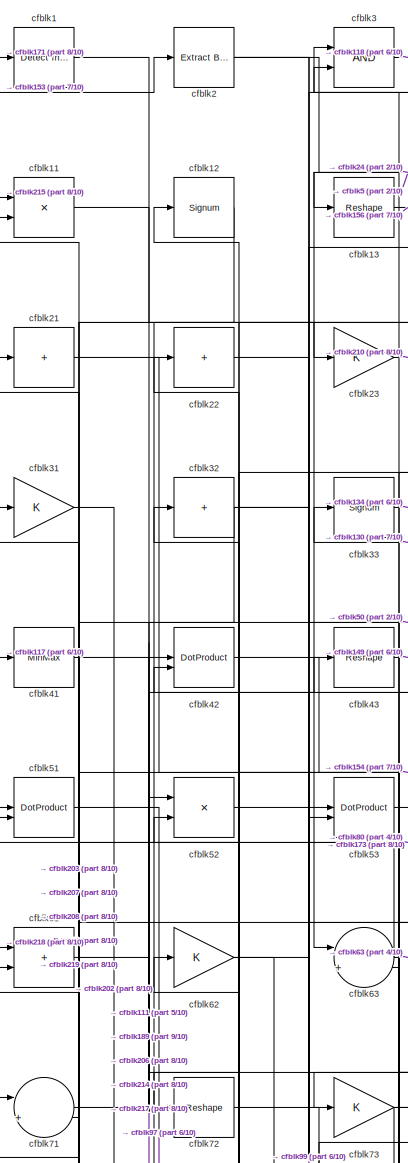
[diagram: root canvas - part 1/10, top left region]
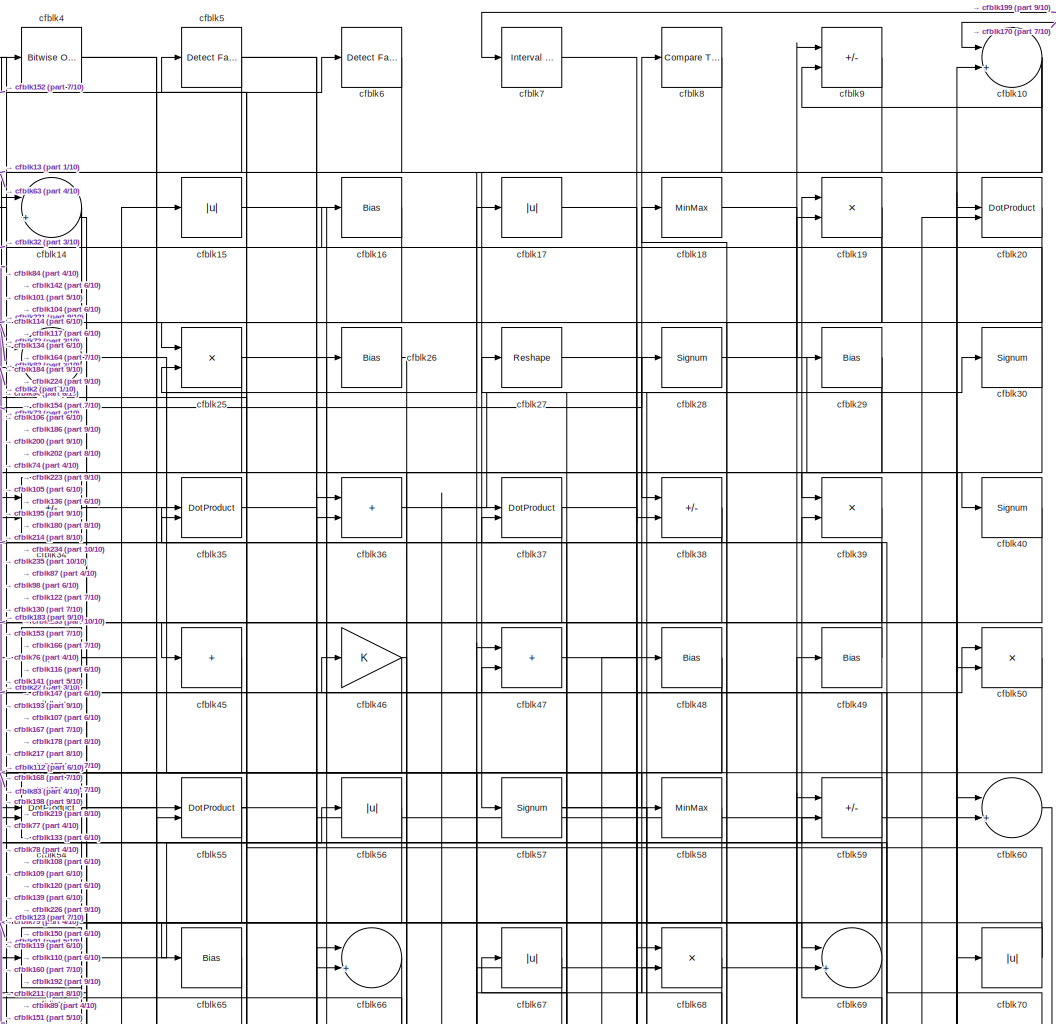
[diagram: root canvas - part 2/10, top center region]
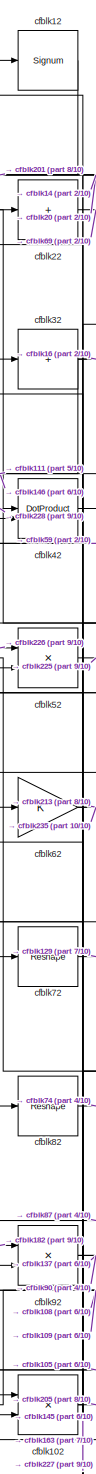
[diagram: root canvas - part 3/10, top left region]
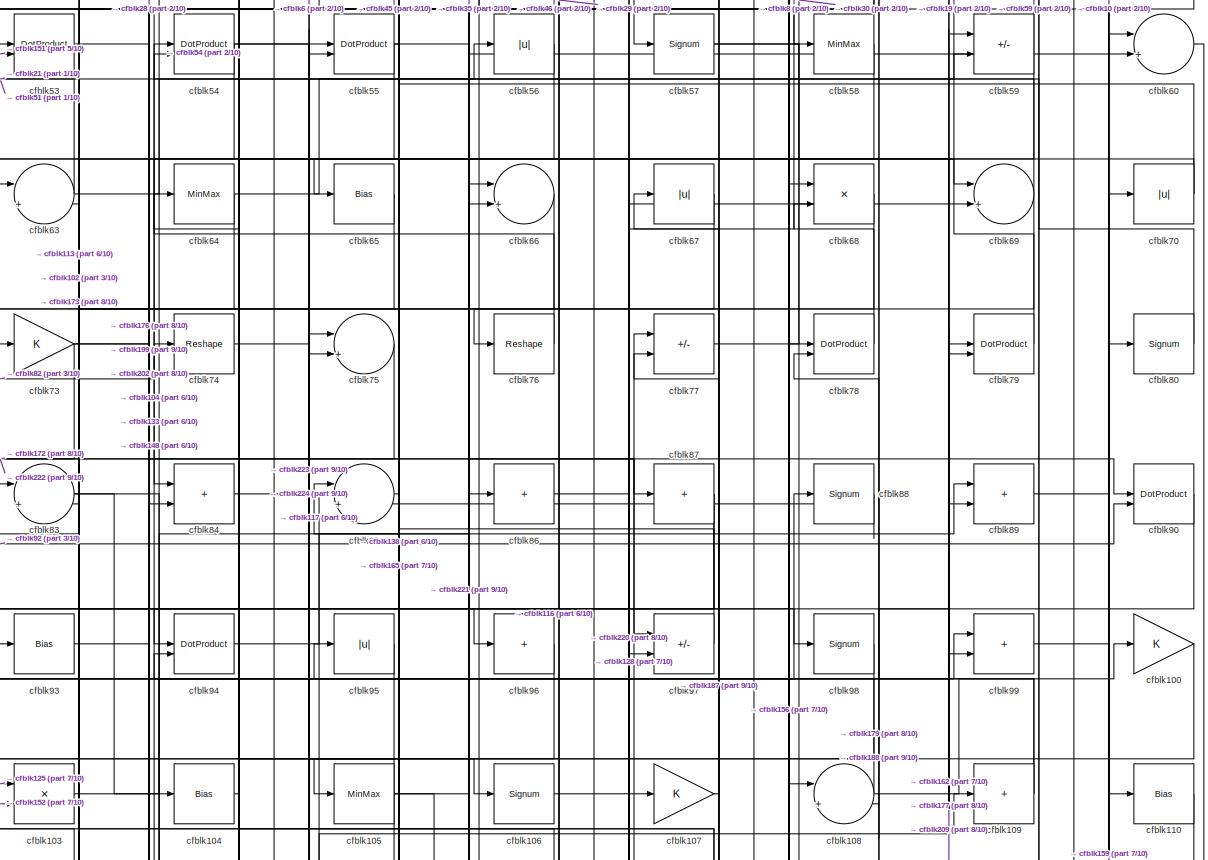
[diagram: root canvas - part 4/10, full width, middle band]
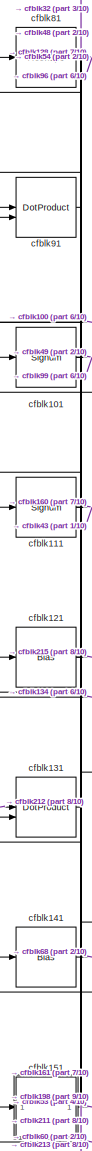
[diagram: root canvas - part 5/10, middle left region]
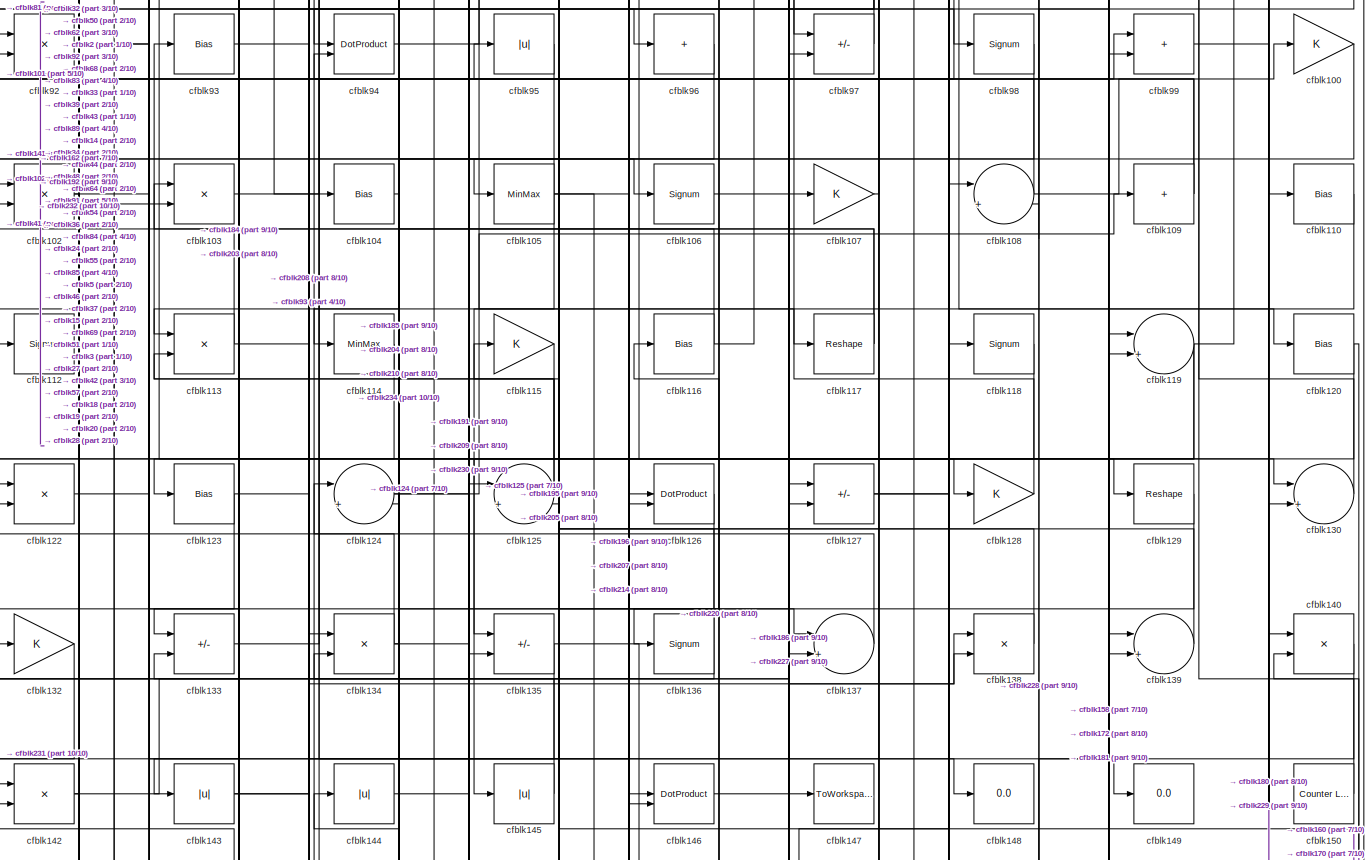
[diagram: root canvas - part 6/10, full width, middle band]
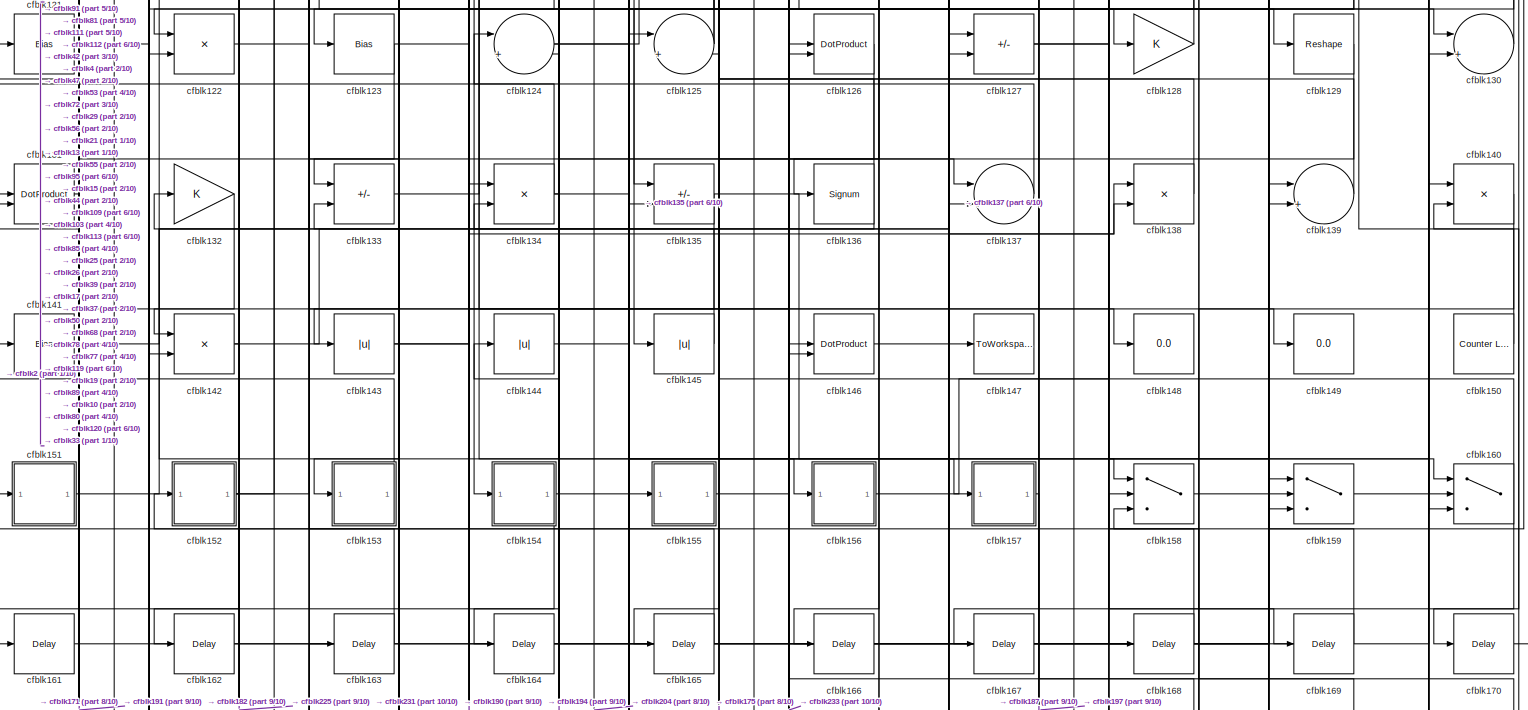
[diagram: root canvas - part 7/10, full width, middle band]
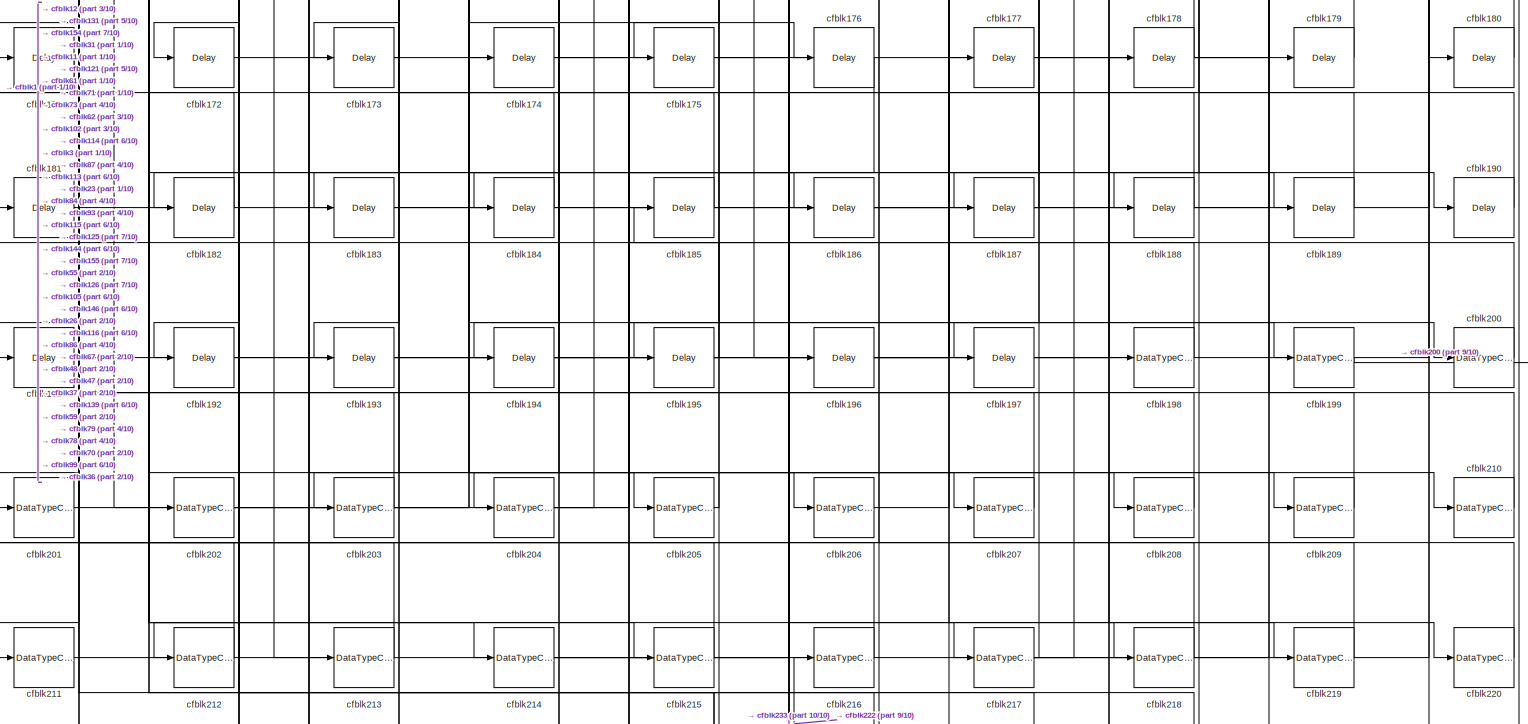
[diagram: root canvas - part 8/10, full width, bottom band]
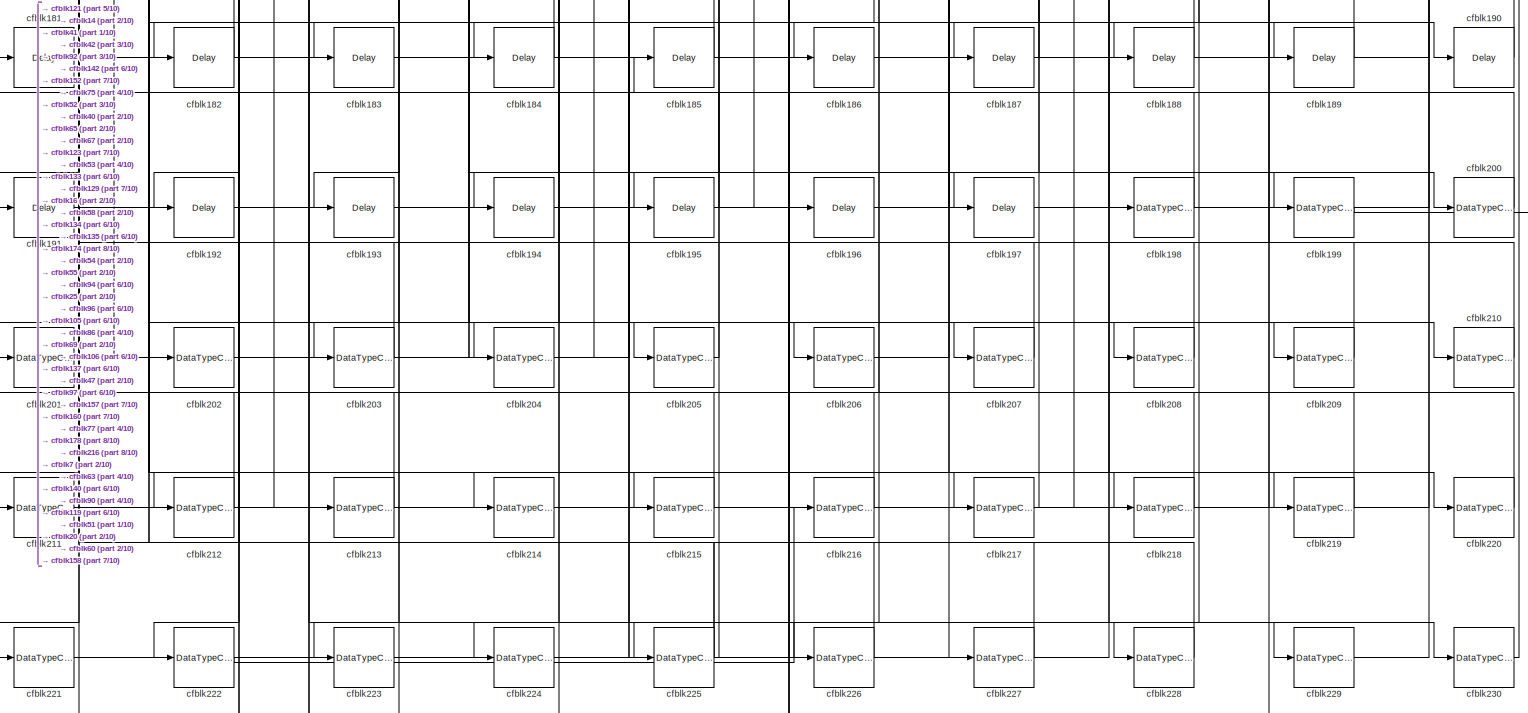
[diagram: root canvas - part 9/10, full width, bottom band]
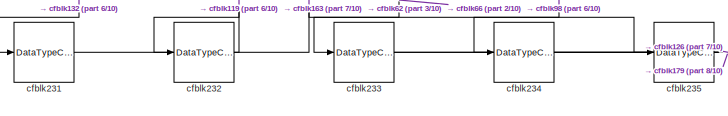
[diagram: root canvas - part 10/10, bottom left region]
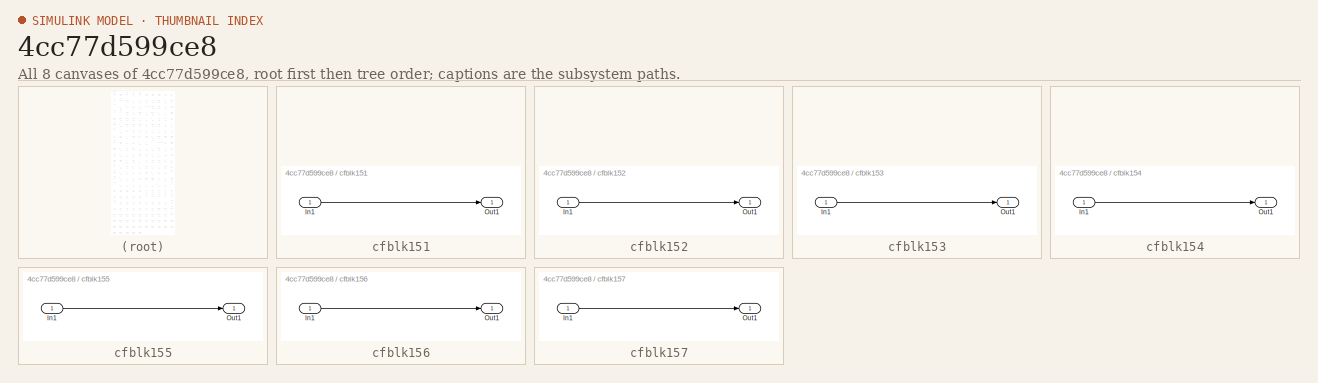
[diagram: thumbnail index - all 8 canvases of the model, root first then tree order]
MODEL slx_4cc77d599ce8
KIND model
CONFIG AbsTol = auto
CONFIG EnableMultiTasking = off
CONFIG FixedStep = auto
CONFIG MaxStep = auto
CONFIG MinStep = auto
CONFIG RelTol = 1e-3
CONFIG SampleTimeConstraint = Unconstrained
CONFIG SolverName = VariableStepAuto
CONFIG StartTime = 0.0
CONFIG StopTime = 10.0
BLOCK [Reference] cfblk1  REF=simulink/Logic and Bit
Operations/Detect
Increase
  LibrarySourceBlock = hdlsllib/Logic and Bit\nOperations/Detect\nIncrease
  SourceBlock = simulink/Logic and Bit\nOperations/Detect\nIncrease
  SourceType = Detect Increase
BLOCK [Sum] cfblk10
  Inputs = |++
BLOCK [Gain] cfblk100
BLOCK [Signum] cfblk101
BLOCK [Product] cfblk102
  Inputs = */
  RndMeth = Zero
  SaturateOnIntegerOverflow = on
BLOCK [Product] cfblk103
  Inputs = */
  RndMeth = Zero
  SaturateOnIntegerOverflow = on
BLOCK [Bias] cfblk104
  Bias = 0.0
  SaturateOnIntegerOverflow = off
BLOCK [MinMax] cfblk105
BLOCK [Signum] cfblk106
BLOCK [Gain] cfblk107
BLOCK [Sum] cfblk108
  Inputs = |++
BLOCK [Sum] cfblk109
  IconShape = rectangular
  Inputs = +
BLOCK [Product] cfblk11
  Inputs = */
  RndMeth = Zero
  SaturateOnIntegerOverflow = on
BLOCK [Bias] cfblk110
  Bias = 0.0
  SaturateOnIntegerOverflow = off
BLOCK [Signum] cfblk111
BLOCK [Signum] cfblk112
BLOCK [Product] cfblk113
  Inputs = */
  RndMeth = Zero
  SaturateOnIntegerOverflow = on
BLOCK [MinMax] cfblk114
BLOCK [Gain] cfblk115
BLOCK [Bias] cfblk116
  Bias = 0.0
  SaturateOnIntegerOverflow = off
BLOCK [Reshape] cfblk117
BLOCK [Signum] cfblk118
BLOCK [Sum] cfblk119
  Inputs = |++
BLOCK [Signum] cfblk12
BLOCK [Bias] cfblk120
  Bias = 0.0
  SaturateOnIntegerOverflow = off
BLOCK [Bias] cfblk121
  Bias = 0.0
  SaturateOnIntegerOverflow = off
BLOCK [Product] cfblk122
  Inputs = */
  RndMeth = Zero
  SaturateOnIntegerOverflow = on
BLOCK [Bias] cfblk123
  Bias = 0.0
  SaturateOnIntegerOverflow = off
BLOCK [Sum] cfblk124
  Inputs = |++
BLOCK [Sum] cfblk125
  Inputs = |++
BLOCK [DotProduct] cfblk126
  OutDataTypeStr = Inherit: Inherit via internal rule
BLOCK [Sum] cfblk127
  IconShape = rectangular
  Inputs = +-
BLOCK [Gain] cfblk128
BLOCK [Reshape] cfblk129
BLOCK [Reshape] cfblk13
BLOCK [Sum] cfblk130
  Inputs = |++
BLOCK [DotProduct] cfblk131
  OutDataTypeStr = Inherit: Inherit via internal rule
BLOCK [Gain] cfblk132
BLOCK [Sum] cfblk133
  IconShape = rectangular
  Inputs = +-
BLOCK [Product] cfblk134
  Inputs = */
  RndMeth = Zero
  SaturateOnIntegerOverflow = on
BLOCK [Sum] cfblk135
  IconShape = rectangular
  Inputs = +-
BLOCK [Signum] cfblk136
BLOCK [Sum] cfblk137
  Inputs = |++
BLOCK [Product] cfblk138
  Inputs = */
  RndMeth = Zero
  SaturateOnIntegerOverflow = on
BLOCK [Sum] cfblk139
  Inputs = |++
BLOCK [Sum] cfblk14
  Inputs = |++
BLOCK [Product] cfblk140
  Inputs = */
  RndMeth = Zero
  SaturateOnIntegerOverflow = on
BLOCK [Bias] cfblk141
  Bias = 0.0
  SaturateOnIntegerOverflow = off
BLOCK [Product] cfblk142
  Inputs = */
  RndMeth = Zero
  SaturateOnIntegerOverflow = on
BLOCK [Abs] cfblk143
  SaturateOnIntegerOverflow = off
BLOCK [Abs] cfblk144
  SaturateOnIntegerOverflow = off
BLOCK [Abs] cfblk145
  SaturateOnIntegerOverflow = off
BLOCK [DotProduct] cfblk146
  OutDataTypeStr = Inherit: Inherit via internal rule
BLOCK [ToWorkspace] cfblk147
  MaxDataPoints = inf
  SampleTime = -1
  SaveFormat = Timeseries
  VariableName = simout
BLOCK [Display] cfblk148
  Decimation = 1
BLOCK [Display] cfblk149
  Decimation = 1
BLOCK [Abs] cfblk15
  SaturateOnIntegerOverflow = off
BLOCK [Reference] cfblk150  REF=hdlsllib/Sources/Counter
Limited
  SourceBlock = hdlsllib/Sources/Counter\nLimited
  SourceType = Counter Limited
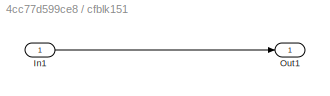
BLOCK [SubSystem] cfblk151
  LibrarySourceBlock = hdlsllib/Ports &\nSubsystems/Subsystem
BLOCK [Inport] cfblk151/In1
BLOCK [Outport] cfblk151/Out1
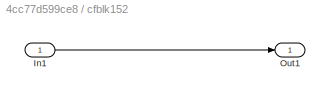
BLOCK [SubSystem] cfblk152
  LibrarySourceBlock = hdlsllib/Ports &\nSubsystems/Subsystem
BLOCK [Inport] cfblk152/In1
BLOCK [Outport] cfblk152/Out1
BLOCK [SubSystem] cfblk153
  LibrarySourceBlock = hdlsllib/Ports &\nSubsystems/Subsystem
BLOCK [Inport] cfblk153/In1
BLOCK [Outport] cfblk153/Out1
BLOCK [SubSystem] cfblk154
  LibrarySourceBlock = hdlsllib/Ports &\nSubsystems/Subsystem
BLOCK [Inport] cfblk154/In1
BLOCK [Outport] cfblk154/Out1
BLOCK [SubSystem] cfblk155
  LibrarySourceBlock = hdlsllib/Ports &\nSubsystems/Subsystem
BLOCK [Inport] cfblk155/In1
BLOCK [Outport] cfblk155/Out1
BLOCK [SubSystem] cfblk156
  LibrarySourceBlock = hdlsllib/Ports &\nSubsystems/Subsystem
BLOCK [Inport] cfblk156/In1
BLOCK [Outport] cfblk156/Out1
BLOCK [SubSystem] cfblk157
  LibrarySourceBlock = hdlsllib/Ports &\nSubsystems/Subsystem
BLOCK [Inport] cfblk157/In1
BLOCK [Outport] cfblk157/Out1
BLOCK [Switch] cfblk158
  InputSameDT = off
  SaturateOnIntegerOverflow = off
BLOCK [Switch] cfblk159
  InputSameDT = off
  SaturateOnIntegerOverflow = off
BLOCK [Bias] cfblk16
  Bias = 0.0
  SaturateOnIntegerOverflow = off
BLOCK [Switch] cfblk160
  InputSameDT = off
  SaturateOnIntegerOverflow = off
BLOCK [Delay] cfblk161
  InputPortMap = u0
  SampleTime = 1
BLOCK [Delay] cfblk162
  InputPortMap = u0
  SampleTime = 1
BLOCK [Delay] cfblk163
  InputPortMap = u0
  SampleTime = 1
BLOCK [Delay] cfblk164
  InputPortMap = u0
  SampleTime = 1
BLOCK [Delay] cfblk165
  InputPortMap = u0
  SampleTime = 1
BLOCK [Delay] cfblk166
  InputPortMap = u0
  SampleTime = 1
BLOCK [Delay] cfblk167
  InputPortMap = u0
  SampleTime = 1
BLOCK [Delay] cfblk168
  InputPortMap = u0
  SampleTime = 1
BLOCK [Delay] cfblk169
  InputPortMap = u0
  SampleTime = 1
BLOCK [Abs] cfblk17
  SaturateOnIntegerOverflow = off
BLOCK [Delay] cfblk170
  InputPortMap = u0
  SampleTime = 1
BLOCK [Delay] cfblk171
  InputPortMap = u0
  SampleTime = 1
BLOCK [Delay] cfblk172
  InputPortMap = u0
  SampleTime = 1
BLOCK [Delay] cfblk173
  InputPortMap = u0
  SampleTime = 1
BLOCK [Delay] cfblk174
  InputPortMap = u0
  SampleTime = 1
BLOCK [Delay] cfblk175
  InputPortMap = u0
  SampleTime = 1
BLOCK [Delay] cfblk176
  InputPortMap = u0
  SampleTime = 1
BLOCK [Delay] cfblk177
  InputPortMap = u0
  SampleTime = 1
BLOCK [Delay] cfblk178
  InputPortMap = u0
  SampleTime = 1
BLOCK [Delay] cfblk179
  InputPortMap = u0
  SampleTime = 1
BLOCK [MinMax] cfblk18
BLOCK [Delay] cfblk180
  InputPortMap = u0
  SampleTime = 1
BLOCK [Delay] cfblk181
  InputPortMap = u0
  SampleTime = 1
BLOCK [Delay] cfblk182
  InputPortMap = u0
  SampleTime = 1
BLOCK [Delay] cfblk183
  InputPortMap = u0
  SampleTime = 1
BLOCK [Delay] cfblk184
  InputPortMap = u0
  SampleTime = 1
BLOCK [Delay] cfblk185
  InputPortMap = u0
  SampleTime = 1
BLOCK [Delay] cfblk186
  InputPortMap = u0
  SampleTime = 1
BLOCK [Delay] cfblk187
  InputPortMap = u0
  SampleTime = 1
BLOCK [Delay] cfblk188
  InputPortMap = u0
  SampleTime = 1
BLOCK [Delay] cfblk189
  InputPortMap = u0
  SampleTime = 1
BLOCK [Product] cfblk19
  Inputs = */
  RndMeth = Zero
  SaturateOnIntegerOverflow = on
BLOCK [Delay] cfblk190
  InputPortMap = u0
  SampleTime = 1
BLOCK [Delay] cfblk191
  InputPortMap = u0
  SampleTime = 1
BLOCK [Delay] cfblk192
  InputPortMap = u0
  SampleTime = 1
BLOCK [Delay] cfblk193
  InputPortMap = u0
  SampleTime = 1
BLOCK [Delay] cfblk194
  InputPortMap = u0
  SampleTime = 1
BLOCK [Delay] cfblk195
  InputPortMap = u0
  SampleTime = 1
BLOCK [Delay] cfblk196
  InputPortMap = u0
  SampleTime = 1
BLOCK [Delay] cfblk197
  InputPortMap = u0
  SampleTime = 1
BLOCK [DataTypeConversion] cfblk198
  OutDataTypeStr = uint8
  RndMeth = Floor
  SaturateOnIntegerOverflow = off
BLOCK [DataTypeConversion] cfblk199
  OutDataTypeStr = uint8
  RndMeth = Floor
  SaturateOnIntegerOverflow = off
BLOCK [Reference] cfblk2  REF=simulink/Logic and Bit
Operations/Extract Bits
  LibrarySourceBlock = hdlsllib/Logic and Bit\nOperations/Extract Bits
  SourceBlock = simulink/Logic and Bit\nOperations/Extract Bits
  SourceType = Extract Bits
BLOCK [DotProduct] cfblk20
  OutDataTypeStr = Inherit: Inherit via internal rule
BLOCK [DataTypeConversion] cfblk200
  OutDataTypeStr = uint8
  RndMeth = Floor
  SaturateOnIntegerOverflow = off
BLOCK [DataTypeConversion] cfblk201
  OutDataTypeStr = uint8
  RndMeth = Floor
  SaturateOnIntegerOverflow = off
BLOCK [DataTypeConversion] cfblk202
  RndMeth = Floor
  SaturateOnIntegerOverflow = off
BLOCK [DataTypeConversion] cfblk203
  OutDataTypeStr = uint8
  RndMeth = Floor
  SaturateOnIntegerOverflow = off
BLOCK [DataTypeConversion] cfblk204
  RndMeth = Floor
  SaturateOnIntegerOverflow = off
BLOCK [DataTypeConversion] cfblk205
  OutDataTypeStr = uint8
  RndMeth = Floor
  SaturateOnIntegerOverflow = off
BLOCK [DataTypeConversion] cfblk206
  OutDataTypeStr = uint8
  RndMeth = Floor
  SaturateOnIntegerOverflow = off
BLOCK [DataTypeConversion] cfblk207
  OutDataTypeStr = uint8
  RndMeth = Floor
  SaturateOnIntegerOverflow = off
BLOCK [DataTypeConversion] cfblk208
  OutDataTypeStr = uint8
  RndMeth = Floor
  SaturateOnIntegerOverflow = off
BLOCK [DataTypeConversion] cfblk209
  OutDataTypeStr = uint8
  RndMeth = Floor
  SaturateOnIntegerOverflow = off
BLOCK [Sum] cfblk21
  IconShape = rectangular
  Inputs = +
BLOCK [DataTypeConversion] cfblk210
  OutDataTypeStr = uint8
  RndMeth = Floor
  SaturateOnIntegerOverflow = off
BLOCK [DataTypeConversion] cfblk211
  OutDataTypeStr = uint8
  RndMeth = Floor
  SaturateOnIntegerOverflow = off
BLOCK [DataTypeConversion] cfblk212
  OutDataTypeStr = uint8
  RndMeth = Floor
  SaturateOnIntegerOverflow = off
BLOCK [DataTypeConversion] cfblk213
  OutDataTypeStr = uint8
  RndMeth = Floor
  SaturateOnIntegerOverflow = off
BLOCK [DataTypeConversion] cfblk214
  RndMeth = Floor
  SaturateOnIntegerOverflow = off
BLOCK [DataTypeConversion] cfblk215
  OutDataTypeStr = uint8
  RndMeth = Floor
  SaturateOnIntegerOverflow = off
BLOCK [DataTypeConversion] cfblk216
  OutDataTypeStr = uint8
  RndMeth = Floor
  SaturateOnIntegerOverflow = off
BLOCK [DataTypeConversion] cfblk217
  RndMeth = Floor
  SaturateOnIntegerOverflow = off
BLOCK [DataTypeConversion] cfblk218
  OutDataTypeStr = uint8
  RndMeth = Floor
  SaturateOnIntegerOverflow = off
BLOCK [DataTypeConversion] cfblk219
  OutDataTypeStr = uint8
  RndMeth = Floor
  SaturateOnIntegerOverflow = off
BLOCK [Sum] cfblk22
  IconShape = rectangular
  Inputs = +
BLOCK [DataTypeConversion] cfblk220
  OutDataTypeStr = uint8
  RndMeth = Floor
  SaturateOnIntegerOverflow = off
BLOCK [DataTypeConversion] cfblk221
  OutDataTypeStr = uint8
  RndMeth = Floor
  SaturateOnIntegerOverflow = off
BLOCK [DataTypeConversion] cfblk222
  RndMeth = Floor
  SaturateOnIntegerOverflow = off
BLOCK [DataTypeConversion] cfblk223
  OutDataTypeStr = uint8
  RndMeth = Floor
  SaturateOnIntegerOverflow = off
BLOCK [DataTypeConversion] cfblk224
  OutDataTypeStr = uint8
  RndMeth = Floor
  SaturateOnIntegerOverflow = off
BLOCK [DataTypeConversion] cfblk225
  RndMeth = Floor
  SaturateOnIntegerOverflow = off
BLOCK [DataTypeConversion] cfblk226
  OutDataTypeStr = uint8
  RndMeth = Floor
  SaturateOnIntegerOverflow = off
BLOCK [DataTypeConversion] cfblk227
  OutDataTypeStr = uint8
  RndMeth = Floor
  SaturateOnIntegerOverflow = off
BLOCK [DataTypeConversion] cfblk228
  OutDataTypeStr = uint8
  RndMeth = Floor
  SaturateOnIntegerOverflow = off
BLOCK [DataTypeConversion] cfblk229
  OutDataTypeStr = uint8
  RndMeth = Floor
  SaturateOnIntegerOverflow = off
BLOCK [Gain] cfblk23
BLOCK [DataTypeConversion] cfblk230
  OutDataTypeStr = uint8
  RndMeth = Floor
  SaturateOnIntegerOverflow = off
BLOCK [DataTypeConversion] cfblk231
  OutDataTypeStr = uint8
  RndMeth = Floor
  SaturateOnIntegerOverflow = off
BLOCK [DataTypeConversion] cfblk232
  OutDataTypeStr = uint8
  RndMeth = Floor
  SaturateOnIntegerOverflow = off
BLOCK [DataTypeConversion] cfblk233
  RndMeth = Floor
  SaturateOnIntegerOverflow = off
BLOCK [DataTypeConversion] cfblk234
  OutDataTypeStr = uint8
  RndMeth = Floor
  SaturateOnIntegerOverflow = off
BLOCK [DataTypeConversion] cfblk235
  OutDataTypeStr = uint8
  RndMeth = Floor
  SaturateOnIntegerOverflow = off
BLOCK [Sum] cfblk24
  Inputs = |++
BLOCK [Product] cfblk25
  Inputs = */
  RndMeth = Zero
  SaturateOnIntegerOverflow = on
BLOCK [Bias] cfblk26
  Bias = 0.0
  SaturateOnIntegerOverflow = off
BLOCK [Reshape] cfblk27
BLOCK [Signum] cfblk28
BLOCK [Bias] cfblk29
  Bias = 0.0
  SaturateOnIntegerOverflow = off
BLOCK [Logic] cfblk3
  AllPortsSameDT = off
  OutDataTypeStr = boolean
BLOCK [Signum] cfblk30
BLOCK [Gain] cfblk31
BLOCK [Sum] cfblk32
  IconShape = rectangular
  Inputs = +
BLOCK [Signum] cfblk33
BLOCK [Sum] cfblk34
  IconShape = rectangular
  Inputs = +-
BLOCK [DotProduct] cfblk35
  OutDataTypeStr = Inherit: Inherit via internal rule
BLOCK [Sum] cfblk36
  IconShape = rectangular
BLOCK [DotProduct] cfblk37
  OutDataTypeStr = Inherit: Inherit via internal rule
BLOCK [Sum] cfblk38
  IconShape = rectangular
  Inputs = +-
BLOCK [Product] cfblk39
  Inputs = */
  RndMeth = Zero
  SaturateOnIntegerOverflow = on
BLOCK [Reference] cfblk4  REF=simulink/Logic and Bit
Operations/Bitwise
Operator
  LibrarySourceBlock = hdlsllib/Logic and Bit\nOperations/Bitwise\nOperator
  SourceBlock = simulink/Logic and Bit\nOperations/Bitwise\nOperator
  SourceType = Bitwise Operator
BLOCK [Signum] cfblk40
BLOCK [MinMax] cfblk41
BLOCK [DotProduct] cfblk42
  OutDataTypeStr = Inherit: Inherit via internal rule
BLOCK [Reshape] cfblk43
BLOCK [Signum] cfblk44
BLOCK [Sum] cfblk45
  IconShape = rectangular
  Inputs = +
BLOCK [Gain] cfblk46
BLOCK [Sum] cfblk47
  IconShape = rectangular
BLOCK [Bias] cfblk48
  Bias = 0.0
  SaturateOnIntegerOverflow = off
BLOCK [Bias] cfblk49
  Bias = 0.0
  SaturateOnIntegerOverflow = off
BLOCK [Reference] cfblk5  REF=hdlsllib/Logic and Bit
Operations/Detect Fall
Negative
  SourceBlock = hdlsllib/Logic and Bit\nOperations/Detect Fall\nNegative
  SourceType = Detect Fall Negative
BLOCK [Product] cfblk50
  Inputs = */
  RndMeth = Zero
  SaturateOnIntegerOverflow = on
BLOCK [DotProduct] cfblk51
  OutDataTypeStr = Inherit: Inherit via internal rule
BLOCK [Product] cfblk52
  Inputs = */
  RndMeth = Zero
  SaturateOnIntegerOverflow = on
BLOCK [DotProduct] cfblk53
  OutDataTypeStr = Inherit: Inherit via internal rule
BLOCK [DotProduct] cfblk54
  OutDataTypeStr = Inherit: Inherit via internal rule
BLOCK [DotProduct] cfblk55
  OutDataTypeStr = Inherit: Inherit via internal rule
BLOCK [Abs] cfblk56
  SaturateOnIntegerOverflow = off
BLOCK [Signum] cfblk57
BLOCK [MinMax] cfblk58
BLOCK [Sum] cfblk59
  IconShape = rectangular
  Inputs = +-
BLOCK [Reference] cfblk6  REF=hdlsllib/Logic and Bit
Operations/Detect Fall
Nonpositive
  SourceBlock = hdlsllib/Logic and Bit\nOperations/Detect Fall\nNonpositive
  SourceType = Detect Fall Nonpositive
BLOCK [Sum] cfblk60
  Inputs = |++
BLOCK [Sum] cfblk61
  IconShape = rectangular
BLOCK [Gain] cfblk62
BLOCK [Sum] cfblk63
  Inputs = |++
BLOCK [MinMax] cfblk64
BLOCK [Bias] cfblk65
  Bias = 0.0
  SaturateOnIntegerOverflow = off
BLOCK [Sum] cfblk66
  Inputs = |++
BLOCK [Abs] cfblk67
  SaturateOnIntegerOverflow = off
BLOCK [Product] cfblk68
  Inputs = */
  RndMeth = Zero
  SaturateOnIntegerOverflow = on
BLOCK [Sum] cfblk69
  Inputs = |++
BLOCK [Reference] cfblk7  REF=hdlsllib/Logic and Bit
Operations/Interval Test
  SourceBlock = hdlsllib/Logic and Bit\nOperations/Interval Test
  SourceType = Interval Test
BLOCK [Abs] cfblk70
  SaturateOnIntegerOverflow = off
BLOCK [Sum] cfblk71
  Inputs = |++
BLOCK [Reshape] cfblk72
BLOCK [Gain] cfblk73
BLOCK [Reshape] cfblk74
BLOCK [Sum] cfblk75
  Inputs = |++
BLOCK [Reshape] cfblk76
BLOCK [Sum] cfblk77
  IconShape = rectangular
  Inputs = +-
BLOCK [DotProduct] cfblk78
  OutDataTypeStr = Inherit: Inherit via internal rule
BLOCK [DotProduct] cfblk79
  OutDataTypeStr = Inherit: Inherit via internal rule
BLOCK [Reference] cfblk8  REF=hdlsllib/Logic and Bit
Operations/Compare
To Zero
  SourceBlock = hdlsllib/Logic and Bit\nOperations/Compare\nTo Zero
  SourceType = Compare To Zero
BLOCK [Signum] cfblk80
BLOCK [Reshape] cfblk81
BLOCK [Reshape] cfblk82
BLOCK [Sum] cfblk83
  Inputs = |++
BLOCK [Sum] cfblk84
  IconShape = rectangular
BLOCK [Sum] cfblk85
  Inputs = |++
BLOCK [Sum] cfblk86
  IconShape = rectangular
  Inputs = +
BLOCK [Sum] cfblk87
  IconShape = rectangular
  Inputs = +
BLOCK [Signum] cfblk88
BLOCK [Sum] cfblk89
  IconShape = rectangular
BLOCK [Sum] cfblk9
  IconShape = rectangular
  Inputs = +-
BLOCK [DotProduct] cfblk90
  OutDataTypeStr = Inherit: Inherit via internal rule
BLOCK [DotProduct] cfblk91
  OutDataTypeStr = Inherit: Inherit via internal rule
BLOCK [Product] cfblk92
  Inputs = */
  RndMeth = Zero
  SaturateOnIntegerOverflow = on
BLOCK [Bias] cfblk93
  Bias = 0.0
  SaturateOnIntegerOverflow = off
BLOCK [DotProduct] cfblk94
  OutDataTypeStr = Inherit: Inherit via internal rule
BLOCK [Abs] cfblk95
  SaturateOnIntegerOverflow = off
BLOCK [Sum] cfblk96
  IconShape = rectangular
  Inputs = +
BLOCK [Sum] cfblk97
  IconShape = rectangular
  Inputs = +-
BLOCK [Signum] cfblk98
BLOCK [Sum] cfblk99
  IconShape = rectangular
LINE cfblk100:1 -> cfblk141:1
NET cfblk101:1 -> cfblk49:1, cfblk99:1
NET cfblk102:1 -> cfblk12:1, cfblk205:1
LINE cfblk103:1 -> cfblk88:1
LINE cfblk104:1 -> cfblk34:1
NET cfblk105:1 -> cfblk102:1, cfblk113:1, cfblk196:1, cfblk207:1
LINE cfblk106:1 -> cfblk227:1
LINE cfblk107:1 -> cfblk27:1
NET cfblk108:1 -> cfblk100:1, cfblk32:1
NET cfblk109:1 -> cfblk18:1, cfblk62:1
NET cfblk10:1 -> cfblk127:2, cfblk160:2, cfblk9:2
LINE cfblk110:1 -> cfblk145:1
NET cfblk111:1 -> cfblk160:1, cfblk43:1
LINE cfblk112:1 -> cfblk162:1
NET cfblk113:1 -> cfblk208:1, cfblk93:1
LINE cfblk114:1 -> cfblk203:1
LINE cfblk115:1 -> cfblk204:1
NET cfblk116:1 -> cfblk37:1, cfblk83:1
NET cfblk117:1 -> cfblk41:1, cfblk64:1
LINE cfblk118:1 -> cfblk135:1
NET cfblk119:1 -> cfblk125:2, cfblk20:2, cfblk232:1
LINE cfblk11:1 -> cfblk214:1
NET cfblk120:1 -> cfblk143:1, cfblk170:1
NET cfblk121:1 -> cfblk215:1, cfblk81:1
LINE cfblk122:1 -> cfblk47:2
NET cfblk123:1 -> cfblk190:1, cfblk191:1
NET cfblk124:1 -> cfblk109:1, cfblk157:1
NET cfblk125:1 -> cfblk103:1, cfblk113:2
LINE cfblk126:1 -> cfblk175:1
NET cfblk127:1 -> cfblk159:3, cfblk50:1
LINE cfblk128:1 -> cfblk77:1
LINE cfblk129:1 -> cfblk194:1
LINE cfblk12:1 -> cfblk201:1
LINE cfblk130:1 -> cfblk33:1
LINE cfblk131:1 -> cfblk211:1
LINE cfblk132:1 -> cfblk231:1
LINE cfblk133:1 -> cfblk89:1
NET cfblk134:1 -> cfblk14:2, cfblk230:1, cfblk91:2
NET cfblk135:1 -> cfblk142:1, cfblk158:1
NET cfblk136:1 -> cfblk134:2, cfblk24:1
LINE cfblk137:1 -> cfblk124:1
LINE cfblk138:1 -> cfblk85:1
LINE cfblk139:1 -> cfblk5:1
LINE cfblk13:1 -> cfblk156:1
LINE cfblk140:1 -> cfblk228:1
LINE cfblk141:1 -> cfblk68:2
NET cfblk142:1 -> cfblk192:1, cfblk69:2
NET cfblk143:1 -> cfblk138:2, cfblk39:2
LINE cfblk144:1 -> cfblk209:1
LINE cfblk145:1 -> cfblk92:2
LINE cfblk146:1 -> cfblk138:1
NET cfblk14:1 -> cfblk221:1, cfblk72:1
LINE cfblk150:1 -> cfblk46:1
LINE cfblk151/In1:1 -> cfblk151/Out1:1
LINE cfblk151:1 -> cfblk53:2
LINE cfblk152/In1:1 -> cfblk152/Out1:1
NET cfblk152:1 -> cfblk103:2, cfblk182:1, cfblk4:1
LINE cfblk153/In1:1 -> cfblk153/Out1:1
LINE cfblk153:1 -> cfblk2:1
LINE cfblk154/In1:1 -> cfblk154/Out1:1
NET cfblk154:1 -> cfblk15:1, cfblk171:1
LINE cfblk155/In1:1 -> cfblk155/Out1:1
LINE cfblk155:1 -> cfblk126:1
LINE cfblk156/In1:1 -> cfblk156/Out1:1
LINE cfblk156:1 -> cfblk78:1
LINE cfblk157/In1:1 -> cfblk157/Out1:1
LINE cfblk157:1 -> cfblk187:1
LINE cfblk158:1 -> cfblk119:1
LINE cfblk159:1 -> cfblk80:1
LINE cfblk15:1 -> cfblk107:1
NET cfblk160:1 -> cfblk197:1, cfblk95:1
LINE cfblk161:1 -> cfblk130:2
LINE cfblk162:1 -> cfblk89:2
LINE cfblk163:1 -> cfblk42:2
LINE cfblk164:1 -> cfblk19:2
LINE cfblk165:1 -> cfblk53:1
LINE cfblk166:1 -> cfblk127:1
LINE cfblk167:1 -> cfblk159:2
LINE cfblk168:1 -> cfblk68:1
LINE cfblk169:1 -> cfblk159:1
LINE cfblk16:1 -> cfblk224:1
LINE cfblk170:1 -> cfblk10:1
LINE cfblk171:1 -> cfblk1:1
LINE cfblk172:1 -> cfblk139:1
LINE cfblk173:1 -> cfblk3:2
LINE cfblk174:1 -> cfblk200:1
LINE cfblk175:1 -> cfblk218:1
LINE cfblk176:1 -> cfblk212:1
LINE cfblk177:1 -> cfblk79:2
LINE cfblk178:1 -> cfblk37:2
LINE cfblk179:1 -> cfblk78:2
LINE cfblk17:1 -> cfblk168:1
LINE cfblk180:1 -> cfblk36:1
LINE cfblk181:1 -> cfblk119:2
LINE cfblk182:1 -> cfblk92:1
LINE cfblk183:1 -> cfblk20:1
LINE cfblk184:1 -> cfblk133:2
LINE cfblk185:1 -> cfblk94:2
LINE cfblk186:1 -> cfblk137:2
LINE cfblk187:1 -> cfblk77:2
LINE cfblk188:1 -> cfblk63:2
LINE cfblk189:1 -> cfblk51:1
LINE cfblk18:1 -> cfblk29:1
LINE cfblk190:1 -> cfblk158:3
LINE cfblk191:1 -> cfblk135:2
LINE cfblk192:1 -> cfblk60:1
LINE cfblk193:1 -> cfblk47:1
LINE cfblk194:1 -> cfblk158:2
LINE cfblk195:1 -> cfblk25:2
LINE cfblk196:1 -> cfblk97:2
LINE cfblk197:1 -> cfblk229:1
LINE cfblk198:1 -> cfblk121:1
LINE cfblk199:1 -> cfblk7:1
NET cfblk19:1 -> cfblk108:2, cfblk25:1
LINE cfblk1:1 -> cfblk23:1
LINE cfblk200:1 -> cfblk55:1
LINE cfblk201:1 -> cfblk174:1
NET cfblk202:1 -> cfblk55:2, cfblk84:2
LINE cfblk203:1 -> cfblk31:1
NET cfblk204:1 -> cfblk125:1, cfblk155:1
LINE cfblk205:1 -> cfblk115:1
LINE cfblk206:1 -> cfblk177:1
LINE cfblk207:1 -> cfblk71:1
LINE cfblk208:1 -> cfblk71:2
LINE cfblk209:1 -> cfblk79:1
LINE cfblk20:1 -> cfblk82:1
LINE cfblk210:1 -> cfblk144:1
LINE cfblk211:1 -> cfblk70:1
LINE cfblk212:1 -> cfblk131:1
LINE cfblk213:1 -> cfblk131:2
NET cfblk214:1 -> cfblk146:1, cfblk26:1
LINE cfblk215:1 -> cfblk11:1
LINE cfblk216:1 -> cfblk11:2
NET cfblk217:1 -> cfblk48:1, cfblk59:1, cfblk67:1
LINE cfblk218:1 -> cfblk61:1
LINE cfblk219:1 -> cfblk61:2
LINE cfblk21:1 -> cfblk154:1
LINE cfblk220:1 -> cfblk116:1
LINE cfblk221:1 -> cfblk86:1
NET cfblk222:1 -> cfblk178:1, cfblk216:1
LINE cfblk223:1 -> cfblk75:1
LINE cfblk224:1 -> cfblk75:2
NET cfblk225:1 -> cfblk152:1, cfblk181:1, cfblk185:1
LINE cfblk226:1 -> cfblk52:1
LINE cfblk227:1 -> cfblk52:2
LINE cfblk228:1 -> cfblk42:1
LINE cfblk229:1 -> cfblk140:1
LINE cfblk22:1 -> cfblk69:1
LINE cfblk230:1 -> cfblk140:2
LINE cfblk231:1 -> cfblk163:1
LINE cfblk232:1 -> cfblk132:1
NET cfblk233:1 -> cfblk126:2, cfblk179:1
LINE cfblk234:1 -> cfblk66:1
LINE cfblk235:1 -> cfblk66:2
LINE cfblk23:1 -> cfblk210:1
LINE cfblk24:1 -> cfblk147:1
NET cfblk25:1 -> cfblk122:1, cfblk130:1
LINE cfblk26:1 -> cfblk166:1
LINE cfblk27:1 -> cfblk38:1
LINE cfblk28:1 -> cfblk110:1
NET cfblk29:1 -> cfblk153:1, cfblk76:1
NET cfblk2:1 -> cfblk24:2, cfblk50:2, cfblk99:2
NET cfblk30:1 -> cfblk14:1, cfblk39:1
LINE cfblk31:1 -> cfblk202:1
NET cfblk32:1 -> cfblk111:1, cfblk146:2, cfblk16:1
LINE cfblk33:1 -> cfblk134:1
LINE cfblk34:1 -> cfblk17:1
LINE cfblk35:1 -> cfblk87:1
LINE cfblk36:1 -> cfblk9:1
NET cfblk37:1 -> cfblk122:2, cfblk169:1
NET cfblk38:1 -> cfblk34:2, cfblk45:1
LINE cfblk39:1 -> cfblk167:1
LINE cfblk3:1 -> cfblk118:1
LINE cfblk40:1 -> cfblk183:1
LINE cfblk41:1 -> cfblk189:1
LINE cfblk42:1 -> cfblk108:1
LINE cfblk43:1 -> cfblk149:1
NET cfblk44:1 -> cfblk114:1, cfblk160:3
LINE cfblk45:1 -> cfblk73:1
NET cfblk46:1 -> cfblk136:1, cfblk83:2
LINE cfblk47:1 -> cfblk219:1
NET cfblk48:1 -> cfblk101:1, cfblk94:1
LINE cfblk49:1 -> cfblk35:2
NET cfblk4:1 -> cfblk40:1, cfblk58:1
LINE cfblk50:1 -> cfblk112:1
LINE cfblk51:1 -> cfblk97:1
LINE cfblk52:1 -> cfblk225:1
LINE cfblk53:1 -> cfblk199:1
NET cfblk54:1 -> cfblk106:1, cfblk186:1, cfblk91:1
NET cfblk55:1 -> cfblk105:1, cfblk164:1, cfblk60:2
LINE cfblk56:1 -> cfblk123:1
NET cfblk57:1 -> cfblk120:1, cfblk139:2
LINE cfblk58:1 -> cfblk184:1
NET cfblk59:1 -> cfblk22:1, cfblk84:1
NET cfblk5:1 -> cfblk13:1, cfblk38:2, cfblk98:1
LINE cfblk60:1 -> cfblk151:1
LINE cfblk61:1 -> cfblk217:1
NET cfblk62:1 -> cfblk213:1, cfblk235:1
NET cfblk63:1 -> cfblk21:1, cfblk59:2
NET cfblk64:1 -> cfblk142:2, cfblk56:1
LINE cfblk65:1 -> cfblk223:1
LINE cfblk66:1 -> cfblk233:1
LINE cfblk67:1 -> cfblk193:1
LINE cfblk68:1 -> cfblk133:1
NET cfblk69:1 -> cfblk226:1, cfblk54:2
LINE cfblk6:1 -> cfblk44:1
NET cfblk70:1 -> cfblk35:1, cfblk65:1
LINE cfblk71:1 -> cfblk206:1
LINE cfblk72:1 -> cfblk129:1
NET cfblk73:1 -> cfblk172:1, cfblk28:1, cfblk90:1
LINE cfblk74:1 -> cfblk6:1
LINE cfblk75:1 -> cfblk222:1
LINE cfblk76:1 -> cfblk54:1
LINE cfblk77:1 -> cfblk30:1
LINE cfblk78:1 -> cfblk8:1
LINE cfblk79:1 -> cfblk19:1
LINE cfblk7:1 -> cfblk198:1
LINE cfblk80:1 -> cfblk51:2
NET cfblk81:1 -> cfblk128:1, cfblk96:1
LINE cfblk82:1 -> cfblk74:1
NET cfblk83:1 -> cfblk104:1, cfblk148:1
LINE cfblk84:1 -> cfblk117:1
LINE cfblk85:1 -> cfblk165:1
LINE cfblk86:1 -> cfblk220:1
NET cfblk87:1 -> cfblk102:2, cfblk173:1
LINE cfblk88:1 -> cfblk85:2
LINE cfblk89:1 -> cfblk10:2
LINE cfblk8:1 -> cfblk63:1
LINE cfblk90:1 -> cfblk188:1
LINE cfblk91:1 -> cfblk161:1
NET cfblk92:1 -> cfblk137:1, cfblk90:2
LINE cfblk93:1 -> cfblk176:1
LINE cfblk94:1 -> cfblk36:2
LINE cfblk95:1 -> cfblk124:2
LINE cfblk96:1 -> cfblk195:1
LINE cfblk97:1 -> cfblk3:1
LINE cfblk98:1 -> cfblk234:1
LINE cfblk99:1 -> cfblk180:1
LINE cfblk9:1 -> cfblk57:1
note: NET lines group one-source signal fan-out (src -> all destinations, sorted); 1:1 wires keep LINE
